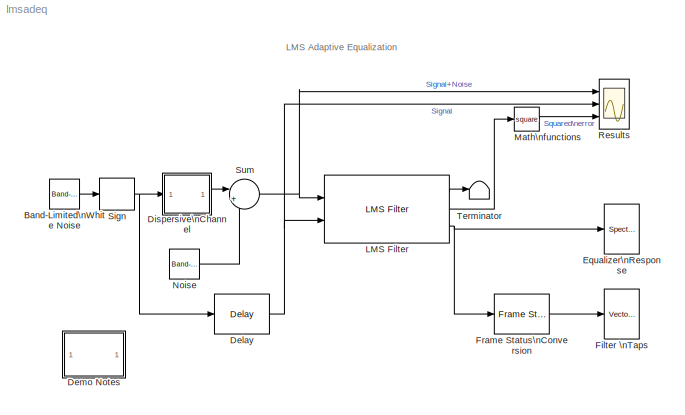
MODEL lmsadeq
KIND model
BLOCK [Reference] Band-Limited\nWhite Noise  REF=simulink/Sources/Band-Limited\nWhite Noise
  Cov = 1e-5
  Ports = [0, 1]
  ShowPortLabels = on
  SourceBlock = simulink/Sources/Band-Limited\nWhite Noise
  SourceType = Band-Limited White Noise.
  Ts = 1e-5
  VectorParams1D = on
  seed = 12345
BLOCK [Reference] Delay  REF=dspsigops/Delay
  Ports = [1, 1]
  SourceBlock = dspsigops/Delay
  SourceType = Delay
  delay = 6
  dif_ic_for_ch = off
  dif_ic_for_dly = off
  dly_unit = Samples
  ic = 0
  ic_detail = off
  reset_popup = None
BLOCK [SubSystem] Demo Notes
  MaskDisplay = disp('Notes')
  MaskIconFrame = on
  MaskIconOpaque = on
  MaskIconRotate = none
  MaskIconUnits = autoscale
  Ports = []
  TreatAsAtomicUnit = off
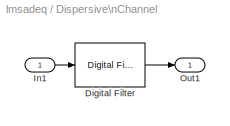
BLOCK [SubSystem] Dispersive\nChannel
  MaskDescription = Dispersive channel filter.
  MaskDisplay = plot(h)
  MaskEnableString = on
  MaskHelp = Dispersive channel filter
  MaskIconFrame = on
  MaskIconOpaque = on
  MaskIconRotate = none
  MaskIconUnits = autoscale
  MaskInitialization = b=.5*(1+cos(2*pi./d.*[-1 0 1])); h=log(abs(freqz(b,1,64)));
  MaskPromptString = Dispersion:
  MaskStyleString = edit
  MaskToolTipString = on
  MaskTunableValueString = on
  MaskType = Simple Dispersive Channel
  MaskValueString = 3.5
  MaskVariables = d=@1;
  MaskVisibilityString = on
  Ports = [1, 1]
  TreatAsAtomicUnit = off
BLOCK [Reference] Dispersive\nChannel/Digital Filter  REF=dsparch4/Digital Filter
  AllPoleFiltStruct = Direct form
  BiQuadCoeffs = [1 0.3 0.4 1 0.1 0.2]
  CoeffSource = Specify via dialog
  DenCoeffs = [1 0.1]
  FIRFiltStruct = Direct form
  FiltPerSampPopup = One filter per frame
  IC = 0
  ICden = 0
  ICnum = 0
  IIRFiltStruct = Direct form II transposed
  LatticeCoeffs = [0.2 0.4]
  NumCoeffs = b
  Ports = [1, 1]
  SourceBlock = dsparch4/Digital Filter
  SourceType = Digital Filter
  TypePopup = FIR (all zeros)
  accumFracLength = 30
  accumMode = Same as product output
  accumWordLength = 40
  additionalParams = off
  allowOverrides = on
  denIgnore = on
  firstCoeffFracLength = 15
  firstCoeffMode = Same as input
  firstCoeffWordLength = 16
  memoryFracLength = 14
  memoryMode = Same as input
  memoryWordLength = 16
  outputFracLength = 15
  outputMode = Same as input
  outputWordLength = 16
  overflowMode = off
  prodOutputFracLength = 30
  prodOutputMode = Same as input
  prodOutputWordLength = 32
  roundingMode = Floor
  secondCoeffFracLength = 15
  secondCoeffMode = Same as numerator
  secondCoeffWordLength = 16
  showAcc = off
  showCoeff = off
  showMem = off
  showMpy = off
  showOut = off
  thirdCoeffFracLength = 15
  thirdCoeffMode = Same as input
  thirdCoeffWordLength = 16
BLOCK [Inport] Dispersive\nChannel/In1
  IconDisplay = Port number
BLOCK [Outport] Dispersive\nChannel/Out1
  IconDisplay = Port number
BLOCK [Reference] Equalizer\nResponse  REF=dspsnks4/Spectrum\nScope
  AxisGrid = on
  AxisLegend = off
  AxisProperties = off
  AxisZoom = off
  BufferSize = 128
  DisplayProperties = off
  Domain = Frequency
  FFTlength = 128
  FigPos = [29 124 450 360]
  FrameNumber = off
  HorizSpan = 1
  InheritXIncr = on
  LineProperties = off
  Memory = off
  OpenScopeAtSimStart = on
  OpenScopeImmediately = off
  Overlap = 64
  Ports = [1]
  ScopeProperties = on
  ShowPortLabels = off
  SourceBlock = dspsnks4/Spectrum\nScope
  SourceType = Spectrum Scope
  UseBuffer = off
  XIncr = 1
  XLabel = Samples
  XRange = [0...Fs/2]
  XUnits = Hertz
  YLabel = Magnitude, dB
  YMax = 8
  YMin = -12
  YUnits = dB
  inpFftLenInherit = on
  numAvg = 2
BLOCK [Reference] Filter \nTaps  REF=dspsnks4/Vector\nScope
  AxisGrid = on
  AxisLegend = off
  AxisProperties = off
  AxisZoom = off
  DisplayProperties = off
  Domain = User-defined
  FigPos = [491 123 450 360]
  FrameNumber = off
  HorizSpan = 1
  InheritXIncr = off
  LineMarkers = .
  LineProperties = off
  Memory = off
  OpenScopeAtSimStart = on
  OpenScopeImmediately = off
  Ports = [1]
  ScopeProperties = on
  ShowPortLabels = off
  SourceBlock = dspsnks4/Vector\nScope
  SourceType = Vector Scope
  XIncr = 1
  XLabel = Samples
  XRange = [0...Fs/2]
  XUnits = Hertz
  YLabel = Equalizer Coefficients
  YMax = 2
  YMin = -1
  YUnits = dB
BLOCK [Reference] Frame Status\nConversion  REF=dspsigattribs/Frame Status\nConversion
  Ports = [1, 1]
  ShowPortLabels = off
  SourceBlock = dspsigattribs/Frame Status\nConversion
  SourceType = Frame Status Conversion
  growRefPort = off
  outframe = Frame-based
BLOCK [Reference] LMS Filter  REF=dspadpt3/LMS Filter
  Adapt = off
  Algo = Normalized LMS
  L = 11
  Ports = [2, 3]
  ShowPortLabels = on
  SourceBlock = dspadpt3/LMS Filter
  SourceType = LMS Filter
  addnparflag = off
  ic = 0
  leakage = 1.0
  mu = 0.5
  resetflag = None
  stepflag = Dialog
  weights = on
BLOCK [Math] Math\nfunctions
  Operator = square
  Ports = [1, 1]
BLOCK [Reference] Noise  REF=simulink/Sources/Band-Limited\nWhite Noise
  Cov = .002e-5
  Ports = [0, 1]
  ShowPortLabels = on
  SourceBlock = simulink/Sources/Band-Limited\nWhite Noise
  SourceType = Band-Limited White Noise.
  Ts = 1e-5
  VectorParams1D = on
  seed = [23341]
BLOCK [Scope] Results
  DataFormat = Array
  NumInputPorts = 3
  Ports = [3]
  SaveName = ScopeData1
  TimeRange = 0.005
  YMax = 2~2~1
  YMin = -2~0~0
BLOCK [Signum] Sign
BLOCK [Sum] Sum
  IconShape = round
  Inputs = |++
  Ports = [2, 1]
BLOCK [Terminator] Terminator
ANNOTATION (root): LMS Adaptive Equalization
ANNOTATION Demo Notes: Adaptive Channel Equalization\n\nThis demonstrates the ability of the LMS algorithm\nto adaptively compute the estimate of an FIR\nequalization filter.\n\nFor more information on the LMS adaptive filter\nor channel equalization, see\nS. Haykin, \"Adaptive Filter Theory\",\n3rd Ed., Prentice Hall, 1996.\n
LINE Band-Limited\nWhite Noise:1 -> Sign:1
NET Delay:1 -> LMS Filter:2, Results:2
LINE Dispersive\nChannel/Digital Filter:1 -> Dispersive\nChannel/Out1:1
LINE Dispersive\nChannel/In1:1 -> Dispersive\nChannel/Digital Filter:1
LINE Dispersive\nChannel:1 -> Sum:1
LINE Frame Status\nConversion:1 -> Filter \nTaps:1
LINE LMS Filter:1 -> Terminator:1
LINE LMS Filter:2 -> Math\nfunctions:1
NET LMS Filter:3 -> Equalizer\nResponse:1, Frame Status\nConversion:1
LINE Math\nfunctions:1 -> Results:3
LINE Noise:1 -> Sum:2
NET Sign:1 -> Delay:1, Dispersive\nChannel:1
NET Sum:1 -> LMS Filter:1, Results:1
note: NET lines group one-source signal fan-out (src -> all destinations, sorted); 1:1 wires keep LINE
